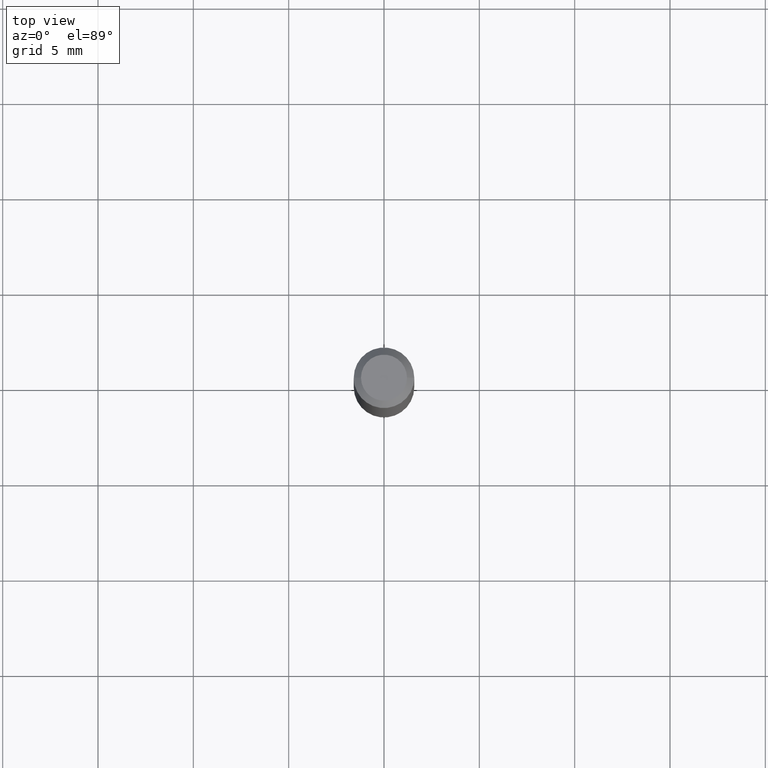
[diagram: clean part render]
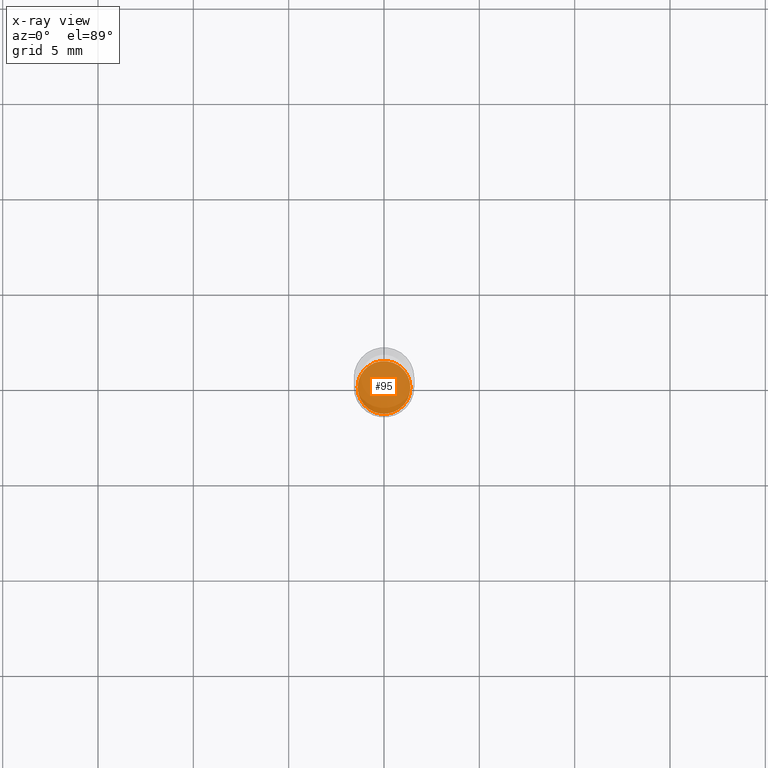
[diagram: x-ray — body ghosted, one internal face saturated and labeled with its STEP entity id]
A machine part, top view, then the same camera in x-ray: the body is ghosted and one INTERNAL B-rep face — a face not visible from any outside direction — is saturated and labeled: STEP entity #95.
In plain terms, the highlighted planar face has unit normal (-0, 0, 1).
Its self-contained STEP definition (entity closure, byte-faithful):
#20 = FACE_OUTER_BOUND ( 'NONE', #311, .T. ) ;
#31 = CARTESIAN_POINT ( 'NONE',  ( 2.861198503236610065E-29, -4.085033166446480067E-15, -1.170000000000000151 ) ) ;
#34 = CIRCLE ( 'NONE', #242, 0.05450000000000000677 ) ;
#70 = DIRECTION ( 'NONE',  ( 1.000000000000000000, -6.982962677686269077E-15, 0.000000000000000000 ) ) ;
#77 = CARTESIAN_POINT ( 'NONE',  ( 2.861198503236610065E-29, -4.085033166446480067E-15, -1.170000000000000151 ) ) ;
#86 = ORIENTED_EDGE ( 'NONE', *, *, #424, .F. ) ;
#95 = ADVANCED_FACE ( 'NONE', ( #20 ), #158, .F. ) ;
#158 = PLANE ( 'NONE',  #319 ) ;
#214 = DIRECTION ( 'NONE',  ( -2.445468806185136597E-29, 3.491481338843145583E-15, 1.000000000000000000 ) ) ;
#242 = AXIS2_PLACEMENT_3D ( 'NONE', #31, #379, #70 ) ;
#265 = DIRECTION ( 'NONE',  ( 1.000000000000000000, -6.982962677686265922E-15, 4.876176775795935793E-29 ) ) ;
#289 = ORIENTED_EDGE ( 'NONE', *, *, #324, .F. ) ;
#311 = EDGE_LOOP ( 'NONE', ( #289, #86 ) ) ;
#316 = CARTESIAN_POINT ( 'NONE',  ( 0.05450000000000000677, -4.465604632380382045E-15, -1.170000000000000151 ) ) ;
#319 = AXIS2_PLACEMENT_3D ( 'NONE', #365, #367, #265 ) ;
#324 = EDGE_CURVE ( 'NONE', #378, #411, #34, .T. ) ;
#357 = CIRCLE ( 'NONE', #395, 0.05450000000000000677 ) ;
#365 = CARTESIAN_POINT ( 'NONE',  ( 2.861198503236610065E-29, -4.085033166446480067E-15, -1.170000000000000151 ) ) ;
#367 = DIRECTION ( 'NONE',  ( -2.438088387897960049E-29, 3.491481338843145188E-15, 1.000000000000000000 ) ) ;
#378 = VERTEX_POINT ( 'NONE', #316 ) ;
#379 = DIRECTION ( 'NONE',  ( -2.445468806185136597E-29, 3.491481338843145583E-15, 1.000000000000000000 ) ) ;
#395 = AXIS2_PLACEMENT_3D ( 'NONE', #77, #214, #452 ) ;
#411 = VERTEX_POINT ( 'NONE', #423 ) ;
#423 = CARTESIAN_POINT ( 'NONE',  ( -0.05450000000000000677, -3.695138148283114316E-15, -1.170000000000000151 ) ) ;
#424 = EDGE_CURVE ( 'NONE', #411, #378, #357, .T. ) ;
#452 = DIRECTION ( 'NONE',  ( 1.000000000000000000, -6.982962677686269077E-15, 0.000000000000000000 ) ) ;